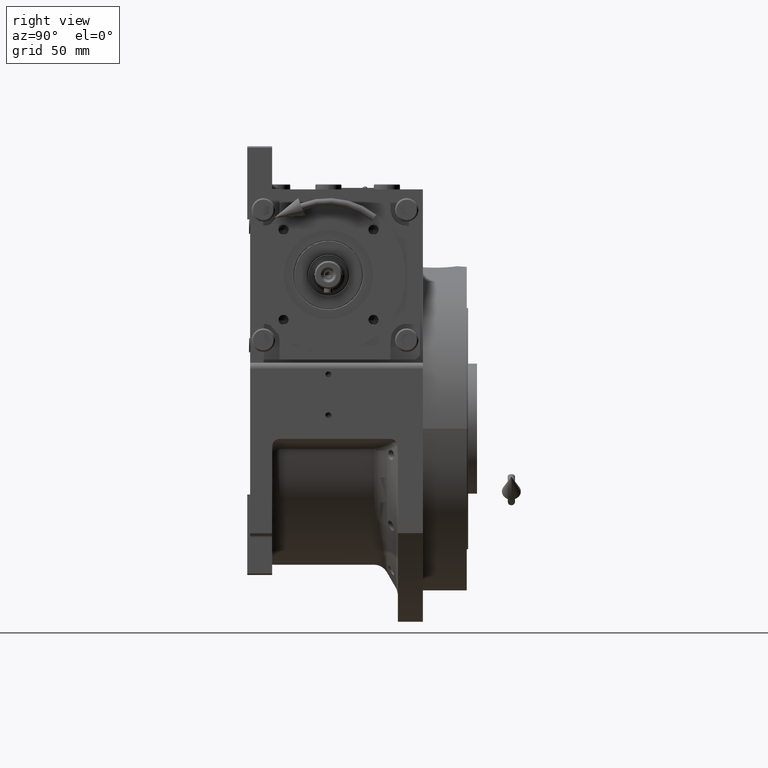
[diagram: clean part render]
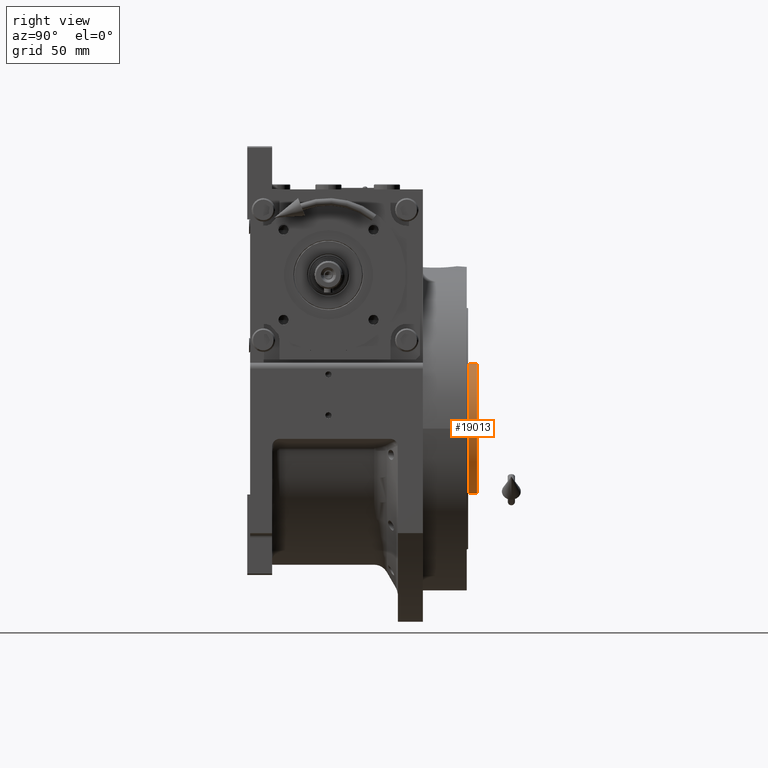
[diagram: same view with one face highlighted and labeled with its STEP entity id]
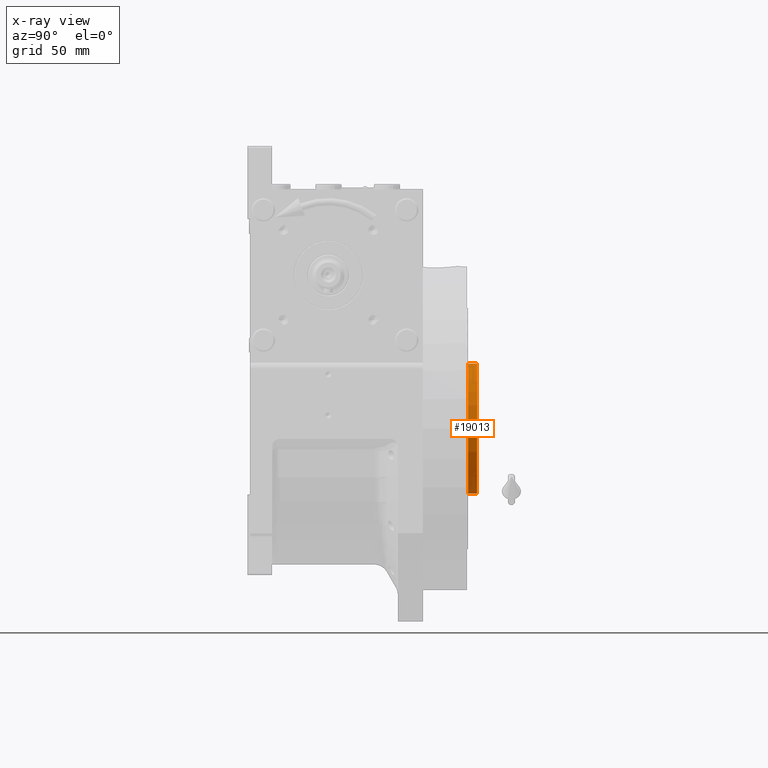
[diagram: x-ray of the same camera — body ghosted, the highlighted face saturated]
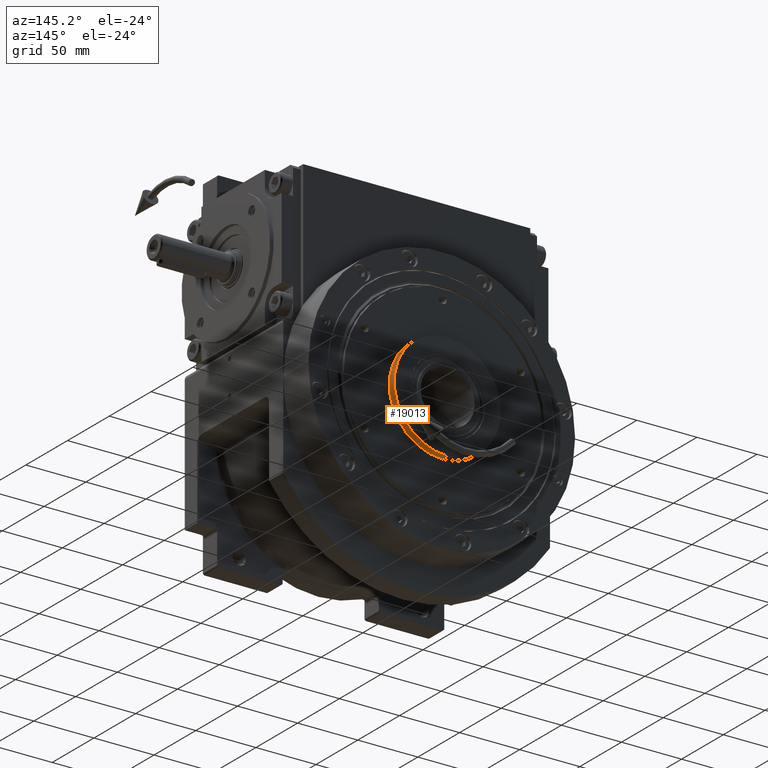
[diagram: same view with one face highlighted and labeled with its STEP entity id]
A machine part, right view. The second image highlights one B-rep face of the part: STEP entity #19013.
The next image is the same camera in x-ray: the body ghosted, the highlighted face saturated — about 0% of this face is hidden behind the body in this view.
A second angle (auxiliary view) of the same face is appended — the face is thin or edge-on in the first view.
In plain terms, the highlighted cylindrical surface (partial cylindrical patch) has radius 44.45 mm, axis along (-0, 1, 0).
Its self-contained STEP definition (entity closure, byte-faithful):
#1499 = EDGE_CURVE ( 'NONE', #5668, #53148, #59312, .T. ) ;
#3024 = CIRCLE ( 'NONE', #65813, 44.45000000000000284 ) ;
#3208 = CARTESIAN_POINT ( 'NONE',  ( 44.44999999999973994, 116.5000000000000000, 1.814518340739671535E-15 ) ) ;
#3899 = CARTESIAN_POINT ( 'NONE',  ( 44.44999999999973994, 110.5000000000000000, 5.443555022212860307E-15 ) ) ;
#4652 = ORIENTED_EDGE ( 'NONE', *, *, #12146, .T. ) ;
#5191 = VECTOR ( 'NONE', #23732, 1000.000000000000000 ) ;
#5668 = VERTEX_POINT ( 'NONE', #3208 ) ;
#6333 = ORIENTED_EDGE ( 'NONE', *, *, #1499, .F. ) ;
#8606 = DIRECTION ( 'NONE',  ( 1.836909530733564901E-16, 1.000000000000000000, 4.632011979606505031E-33 ) ) ;
#8975 = CYLINDRICAL_SURFACE ( 'NONE', #29892, 44.45000000000000284 ) ;
#11859 = EDGE_CURVE ( 'NONE', #24700, #53148, #50751, .T. ) ;
#12146 = EDGE_CURVE ( 'NONE', #61810, #24700, #3024, .T. ) ;
#15750 = CARTESIAN_POINT ( 'NONE',  ( 44.44999999999973994, 110.5000000000000000, 5.443555022212860307E-15 ) ) ;
#19013 = ADVANCED_FACE ( 'NONE', ( #56724 ), #8975, .T. ) ;
#19220 = CARTESIAN_POINT ( 'NONE',  ( 2.131628207280297402E-14, 116.5000000000000000, 0.000000000000000000 ) ) ;
#19550 = DIRECTION ( 'NONE',  ( 3.197042680585380437E-16, 1.000000000000000000, -2.395852276087255412E-17 ) ) ;
#23194 = DIRECTION ( 'NONE',  ( 6.394085361170760874E-16, 1.000000000000000000, -2.395852276087253871E-17 ) ) ;
#23230 = EDGE_CURVE ( 'NONE', #61810, #5668, #42150, .T. ) ;
#23421 = AXIS2_PLACEMENT_3D ( 'NONE', #19220, #19550, #55407 ) ;
#23732 = DIRECTION ( 'NONE',  ( 0.000000000000000000, 1.000000000000000000, 1.540743955586159449E-33 ) ) ;
#24700 = VERTEX_POINT ( 'NONE', #34061 ) ;
#27268 = CARTESIAN_POINT ( 'NONE',  ( -44.45000000000026574, 116.5000000000000000, -3.629036681470309824E-15 ) ) ;
#29892 = AXIS2_PLACEMENT_3D ( 'NONE', #46532, #8606, #35654 ) ;
#34061 = CARTESIAN_POINT ( 'NONE',  ( -44.45000000000026574, 110.5000000000000000, -7.258073362939949116E-15 ) ) ;
#35654 = DIRECTION ( 'NONE',  ( -1.000000000000000000, 3.122111992759157471E-16, 0.000000000000000000 ) ) ;
#39706 = DIRECTION ( 'NONE',  ( 1.000000000000000000, -6.244223985518314942E-16, 2.023907469293703493E-16 ) ) ;
#40243 = ORIENTED_EDGE ( 'NONE', *, *, #23230, .F. ) ;
#41739 = VECTOR ( 'NONE', #46391, 1000.000000000000000 ) ;
#42150 = LINE ( 'NONE', #3899, #41739 ) ;
#46192 = CARTESIAN_POINT ( 'NONE',  ( -44.45000000000026574, 110.5000000000000000, -1.088711004441323610E-14 ) ) ;
#46391 = DIRECTION ( 'NONE',  ( 0.000000000000000000, 1.000000000000000000, 1.540743955586159449E-33 ) ) ;
#46532 = CARTESIAN_POINT ( 'NONE',  ( 2.247917120697974048E-14, 122.3250000000000028, 1.163261686409890455E-28 ) ) ;
#50751 = LINE ( 'NONE', #46192, #5191 ) ;
#51487 = ORIENTED_EDGE ( 'NONE', *, *, #11859, .T. ) ;
#53148 = VERTEX_POINT ( 'NONE', #27268 ) ;
#55407 = DIRECTION ( 'NONE',  ( 1.000000000000000000, -3.122111992759157471E-16, 0.000000000000000000 ) ) ;
#56724 = FACE_OUTER_BOUND ( 'NONE', #57258, .T. ) ;
#57258 = EDGE_LOOP ( 'NONE', ( #4652, #51487, #6333, #40243 ) ) ;
#59312 = CIRCLE ( 'NONE', #23421, 44.45000000000000284 ) ;
#61130 = CARTESIAN_POINT ( 'NONE',  ( 1.776356839400252042E-14, 110.5000000000000000, -3.552713678800499352E-15 ) ) ;
#61810 = VERTEX_POINT ( 'NONE', #15750 ) ;
#65813 = AXIS2_PLACEMENT_3D ( 'NONE', #61130, #23194, #39706 ) ;